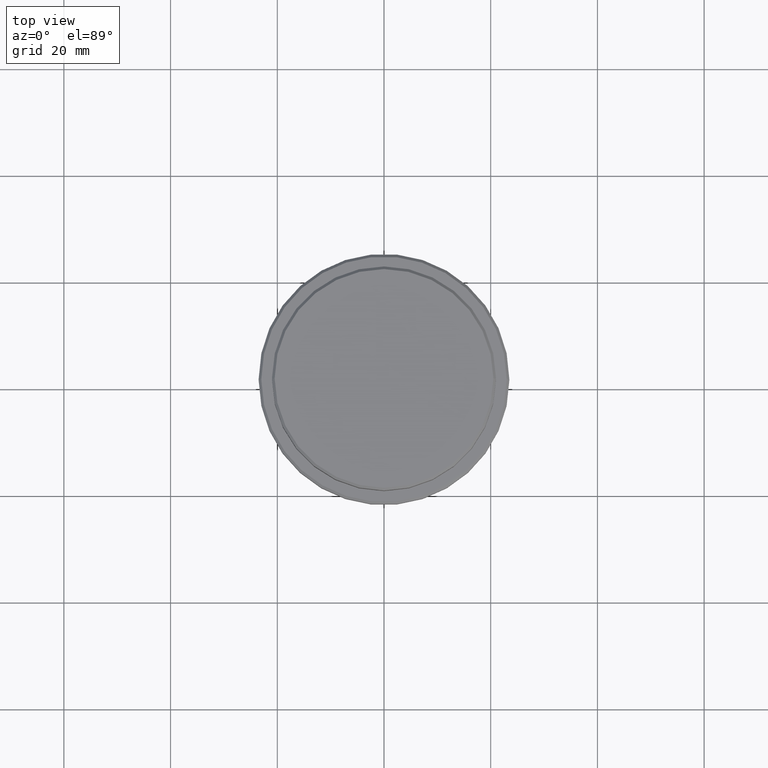
[diagram: clean part render]
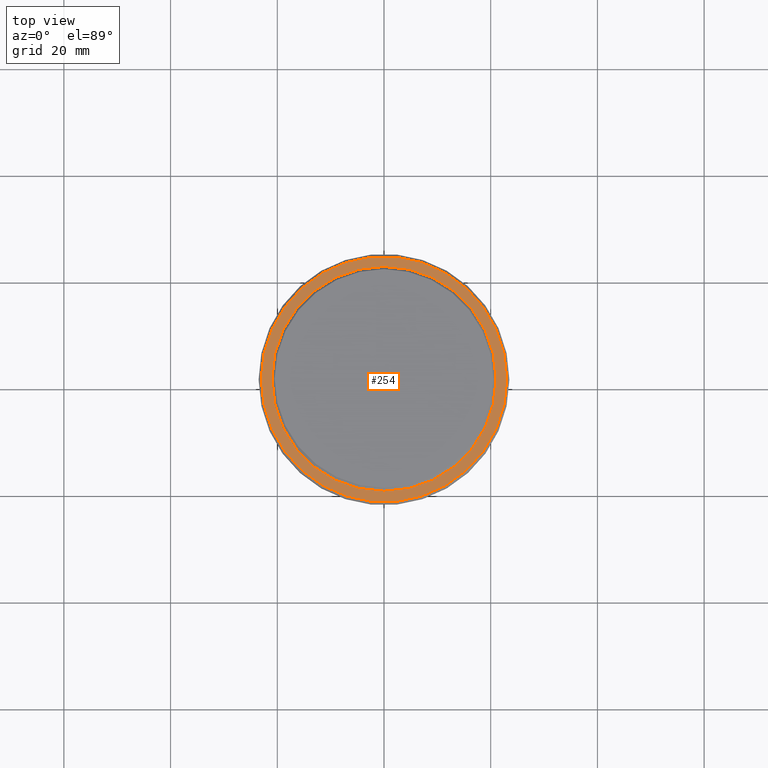
[diagram: same view with one face highlighted and labeled with its STEP entity id]
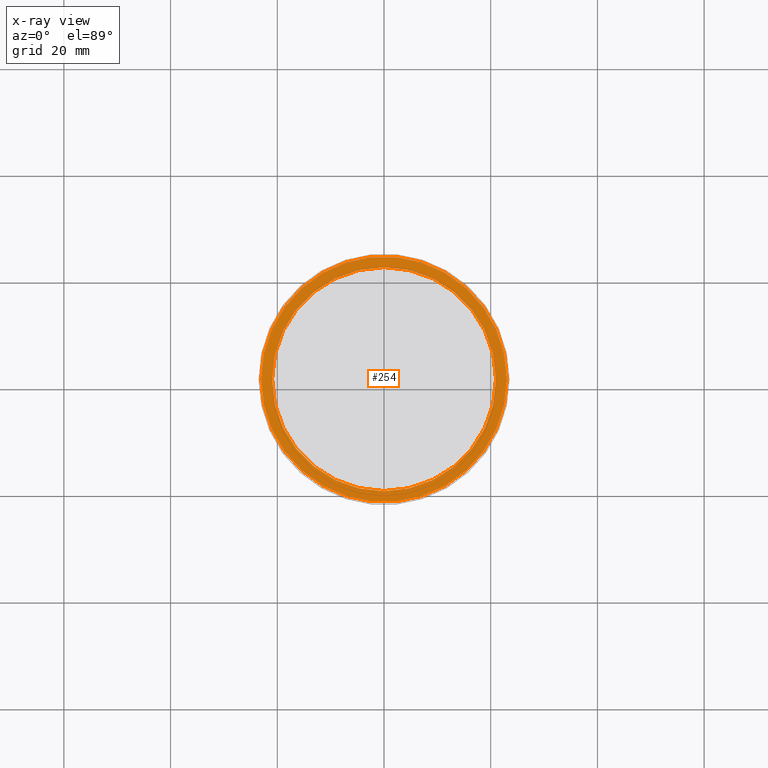
[diagram: x-ray of the same camera — body ghosted, the highlighted face saturated]
A machine part, top view. The second image highlights one B-rep face of the part: STEP entity #254.
The next image is the same camera in x-ray: the body ghosted, the highlighted face saturated — about 0% of this face is hidden behind the body in this view.
In plain terms, the highlighted planar face has unit normal (0, -0, 1).
Its self-contained STEP definition (entity closure, byte-faithful):
#8 = CARTESIAN_POINT ( 'NONE',  ( 20.99999999999999289, 0.000000000000000000, -9.000000000000000000 ) ) ;
#12 = CARTESIAN_POINT ( 'NONE',  ( 0.000000000000000000, 0.000000000000000000, -9.000000000000000000 ) ) ;
#31 = DIRECTION ( 'NONE',  ( 1.000000000000000000, 0.000000000000000000, 0.000000000000000000 ) ) ;
#43 = DIRECTION ( 'NONE',  ( 1.000000000000000000, 0.000000000000000000, 0.000000000000000000 ) ) ;
#58 = AXIS2_PLACEMENT_3D ( 'NONE', #12, #325, #439 ) ;
#168 = CARTESIAN_POINT ( 'NONE',  ( 0.000000000000000000, 20.49999999999999645, -9.000000000000000000 ) ) ;
#235 = DIRECTION ( 'NONE',  ( 0.000000000000000000, 0.000000000000000000, -1.000000000000000000 ) ) ;
#241 = CIRCLE ( 'NONE', #832, 20.99999999999999289 ) ;
#254 = ADVANCED_FACE ( 'NONE', ( #797, #1230 ), #269, .T. ) ;
#258 = AXIS2_PLACEMENT_3D ( 'NONE', #168, #466, #43 ) ;
#269 = PLANE ( 'NONE',  #258 ) ;
#275 = DIRECTION ( 'NONE',  ( 0.000000000000000000, 0.000000000000000000, -1.000000000000000000 ) ) ;
#323 = CARTESIAN_POINT ( 'NONE',  ( -22.99999999999998224, 0.000000000000000000, -9.000000000000000000 ) ) ;
#325 = DIRECTION ( 'NONE',  ( -0.000000000000000000, -0.000000000000000000, 1.000000000000000000 ) ) ;
#388 = VERTEX_POINT ( 'NONE', #831 ) ;
#410 = EDGE_LOOP ( 'NONE', ( #743, #504 ) ) ;
#439 = DIRECTION ( 'NONE',  ( 1.000000000000000000, 0.000000000000000000, 0.000000000000000000 ) ) ;
#446 = VERTEX_POINT ( 'NONE', #323 ) ;
#465 = CIRCLE ( 'NONE', #58, 22.99999999999998224 ) ;
#466 = DIRECTION ( 'NONE',  ( 0.000000000000000000, -0.000000000000000000, 1.000000000000000000 ) ) ;
#491 = DIRECTION ( 'NONE',  ( 1.000000000000000000, 0.000000000000000000, 0.000000000000000000 ) ) ;
#504 = ORIENTED_EDGE ( 'NONE', *, *, #1323, .T. ) ;
#552 = AXIS2_PLACEMENT_3D ( 'NONE', #910, #586, #785 ) ;
#586 = DIRECTION ( 'NONE',  ( -0.000000000000000000, -0.000000000000000000, 1.000000000000000000 ) ) ;
#615 = CARTESIAN_POINT ( 'NONE',  ( 0.000000000000000000, 0.000000000000000000, -9.000000000000000000 ) ) ;
#673 = ORIENTED_EDGE ( 'NONE', *, *, #1260, .T. ) ;
#743 = ORIENTED_EDGE ( 'NONE', *, *, #1388, .T. ) ;
#760 = VERTEX_POINT ( 'NONE', #8 ) ;
#785 = DIRECTION ( 'NONE',  ( 1.000000000000000000, 0.000000000000000000, 0.000000000000000000 ) ) ;
#797 = FACE_OUTER_BOUND ( 'NONE', #1061, .T. ) ;
#809 = CIRCLE ( 'NONE', #552, 22.99999999999998224 ) ;
#831 = CARTESIAN_POINT ( 'NONE',  ( -20.99999999999999289, 2.571758278209440872E-15, -9.000000000000000000 ) ) ;
#832 = AXIS2_PLACEMENT_3D ( 'NONE', #615, #275, #491 ) ;
#910 = CARTESIAN_POINT ( 'NONE',  ( 0.000000000000000000, 0.000000000000000000, -9.000000000000000000 ) ) ;
#1061 = EDGE_LOOP ( 'NONE', ( #673, #1069 ) ) ;
#1069 = ORIENTED_EDGE ( 'NONE', *, *, #1163, .T. ) ;
#1163 = EDGE_CURVE ( 'NONE', #1298, #446, #465, .T. ) ;
#1212 = CARTESIAN_POINT ( 'NONE',  ( 22.99999999999998224, 2.847303808017595350E-15, -9.000000000000000000 ) ) ;
#1230 = FACE_BOUND ( 'NONE', #410, .T. ) ;
#1260 = EDGE_CURVE ( 'NONE', #446, #1298, #809, .T. ) ;
#1298 = VERTEX_POINT ( 'NONE', #1212 ) ;
#1323 = EDGE_CURVE ( 'NONE', #388, #760, #1356, .T. ) ;
#1328 = CARTESIAN_POINT ( 'NONE',  ( 0.000000000000000000, 0.000000000000000000, -9.000000000000000000 ) ) ;
#1356 = CIRCLE ( 'NONE', #1409, 20.99999999999999289 ) ;
#1388 = EDGE_CURVE ( 'NONE', #760, #388, #241, .T. ) ;
#1409 = AXIS2_PLACEMENT_3D ( 'NONE', #1328, #235, #31 ) ;